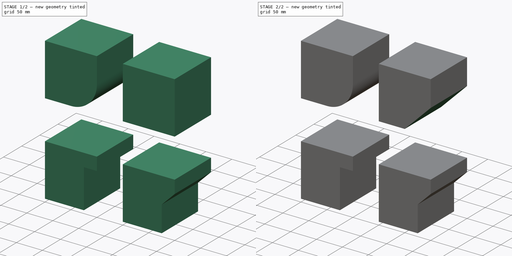
[diagram: build sequence overview — one tinted view per stage of 2, left to right]
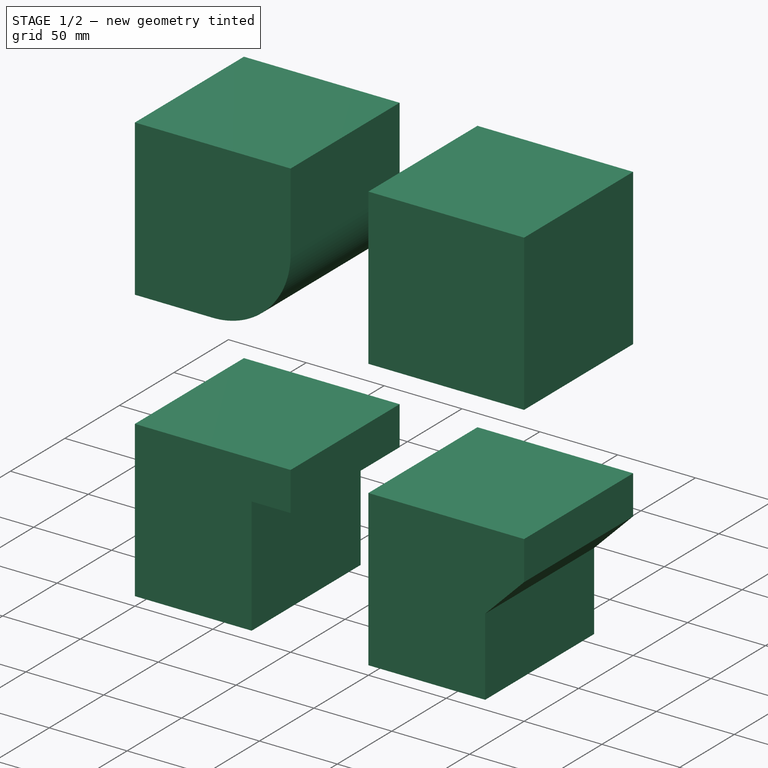
[diagram: stage 1 of 2 — iso view after this stage's code; geometry added in this stage tinted green]
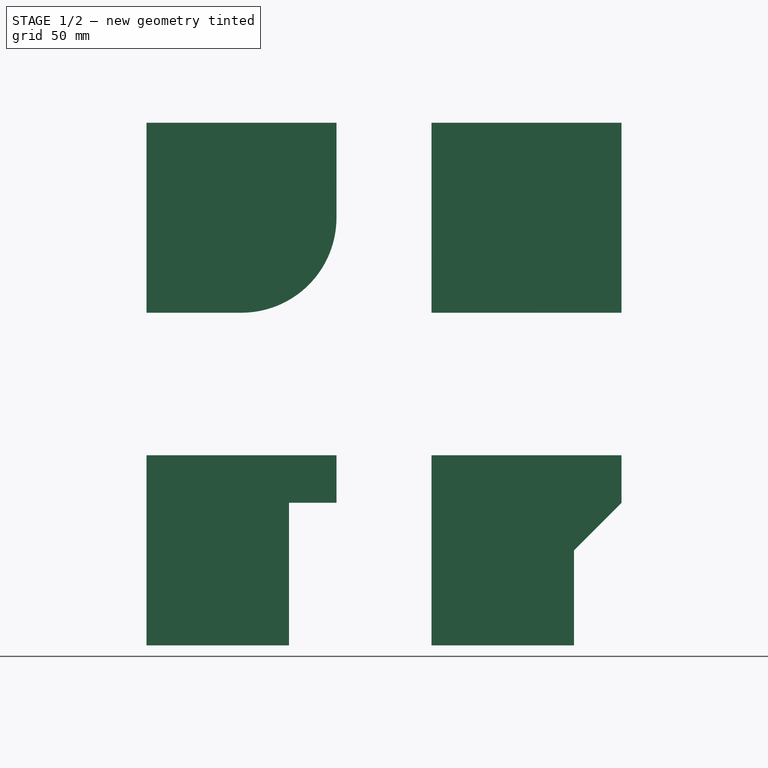
[diagram: stage 1 of 2 — front view after this stage's code; geometry added in this stage tinted green]
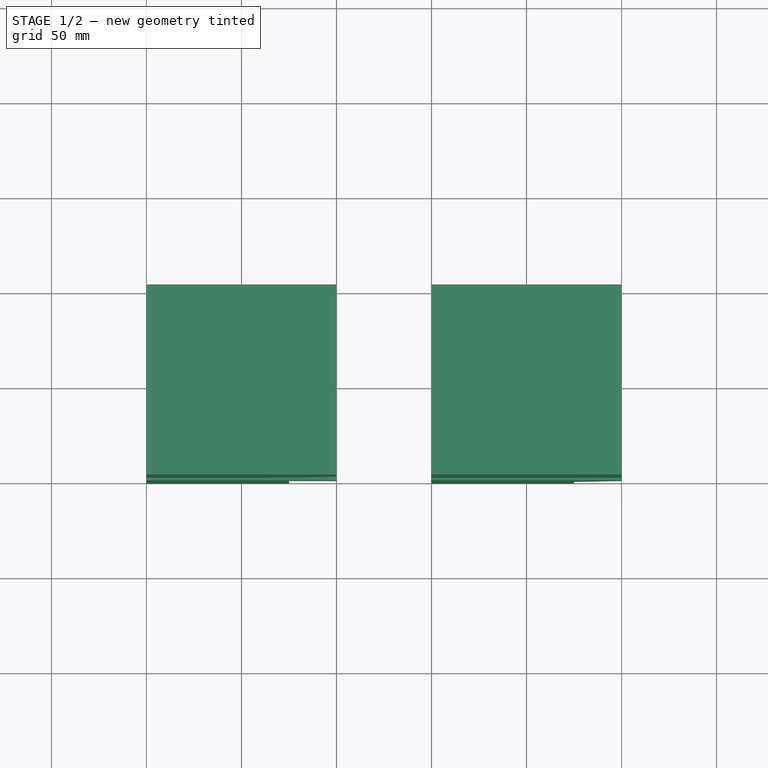
[diagram: stage 1 of 2 — top view after this stage's code; geometry added in this stage tinted green]
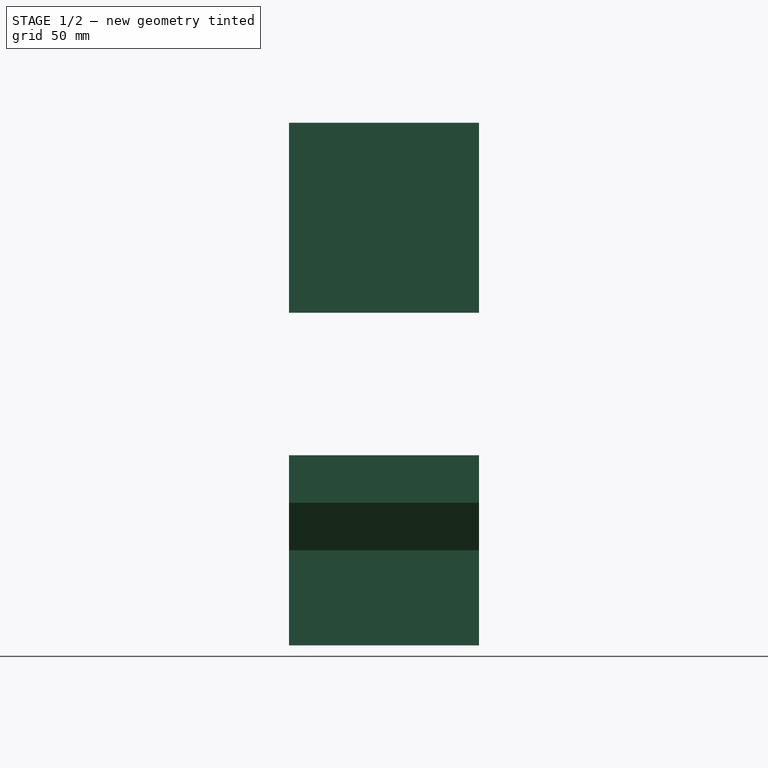
[diagram: stage 1 of 2 — right view after this stage's code; geometry added in this stage tinted green]
FCSTD DOCUMENT  (FreeCAD 0.16R6706 (Git))
Label: minimize_support
License: All rights reserved
LicenseURL: http://en.wikipedia.org/wiki/All_rights_reserved
objects: Sketcher::SketchObject×1, PartDesign::Pad×1, PartDesign::Fillet×1, PartDesign::Chamfer×1, Drawing::FeatureViewPart×1, Drawing::FeaturePage×1
note: 5 computed .brp shape members not serialized (recipe doc carries the construction recipe); baked Part::Feature solids carry a one-line shape summary decoded from their .brp

FEATURE [Sketcher::SketchObject] Sketch
  Placement = pos=(0,0,0) rot=(-1,0,0;4.71239rad)
  sketch-geometry (20):
    g0: LineSegment StartX=0 StartY=100 StartZ=0 EndX=100 EndY=100 EndZ=0
    g1: LineSegment StartX=100 StartY=100 StartZ=0 EndX=100 EndY=0 EndZ=0
    g2: LineSegment StartX=100 StartY=0 StartZ=0 EndX=0 EndY=0 EndZ=0
    g3: LineSegment StartX=0 StartY=0 StartZ=0 EndX=0 EndY=100 EndZ=0
    g4: LineSegment StartX=150 StartY=100 StartZ=0 EndX=250 EndY=100 EndZ=0
    g5: LineSegment StartX=250 StartY=100 StartZ=0 EndX=250 EndY=0 EndZ=0
    g6: LineSegment StartX=250 StartY=0 StartZ=0 EndX=150 EndY=0 EndZ=0
    g7: LineSegment StartX=150 StartY=0 StartZ=0 EndX=150 EndY=100 EndZ=0
    g8: LineSegment StartX=0 StartY=-75 StartZ=0 EndX=0 EndY=-175 EndZ=0
    g9: LineSegment StartX=0 StartY=-175 StartZ=0 EndX=75 EndY=-175 EndZ=0
    g10: LineSegment StartX=75 StartY=-175 StartZ=0 EndX=75 EndY=-100 EndZ=0
    g11: LineSegment StartX=75 StartY=-100 StartZ=0 EndX=100 EndY=-100 EndZ=0
    g12: LineSegment StartX=100 StartY=-100 StartZ=0 EndX=100 EndY=-75 EndZ=0
    g13: LineSegment StartX=100 StartY=-75 StartZ=0 EndX=0 EndY=-75 EndZ=0
    g14: LineSegment StartX=150 StartY=-75 StartZ=0 EndX=150 EndY=-175 EndZ=0
    g15: LineSegment StartX=150 StartY=-175 StartZ=0 EndX=225 EndY=-175 EndZ=0
    g16: LineSegment StartX=225 StartY=-175 StartZ=0 EndX=225 EndY=-125 EndZ=0
    g17: LineSegment StartX=225 StartY=-125 StartZ=0 EndX=250 EndY=-100 EndZ=0
    g18: LineSegment StartX=250 StartY=-100 StartZ=0 EndX=250 EndY=-75 EndZ=0
    g19: LineSegment StartX=250 StartY=-75 StartZ=0 EndX=150 EndY=-75 EndZ=0
  constraints (59):
    c: Coincident(g0,g1)
    c: Coincident(g1,g2)
    c: Coincident(g2,g3)
    c: Coincident(g3,g0)
    c: Horizontal(g0)
    c: Horizontal(g2)
    c: Vertical(g1)
    c: Vertical(g3)
    c: Coincident(g4,g5)
    c: Coincident(g5,g6)
    c: Coincident(g6,g7)
    c: Coincident(g7,g4)
    c: Horizontal(g4)
    c: Horizontal(g6)
    c: Vertical(g5)
    c: Vertical(g7)
    c: Coincident(g2,g-1)
    c: PointOnObject(g6,g-1)
    c: Equal(g0,g4)
    c: Equal(g1,g7)
    c: DistanceX(g2,g2) = 100
    c: Equal(g0,g3)
    c: DistanceX(g1,g6) = 50
    c: Vertical(g8)
    c: Coincident(g8,g9)
    c: Horizontal(g9)
    c: Coincident(g9,g10)
    c: Vertical(g10)
    c: Coincident(g10,g11)
    c: Horizontal(g11)
    c: Coincident(g11,g12)
    c: Coincident(g12,g13)
    c: Coincident(g13,g8)
    c: Horizontal(g13)
    c: Vertical(g12)
    c: DistanceX(g13,g13) = 100
    c: PointOnObject(g8,g-2)
    c: DistanceY(g8,g-1) = 75
    c: DistanceX(g9,g9) = 75
    c: DistanceY(g8,g8) = 100
    c: DistanceY(g10,g10) = 75
    c: Vertical(g14)
    c: Coincident(g14,g15)
    c: Horizontal(g15)
    c: Coincident(g15,g16)
    c: Vertical(g16)
    c: Coincident(g16,g17)
    c: Coincident(g17,g18)
    c: Vertical(g18)
    c: Coincident(g18,g19)
    c: Horizontal(g19)
    c: Coincident(g19,g14)
    c: DistanceX(g14,g6) = 0
    c: DistanceY(g14,g6) = 75
    c: Equal(g14,g8)
    c: Equal(g13,g19)
    c: Equal(g9,g15)
    c: Equal(g18,g12)
    c: DistanceY(g16,g16) = 50
FEATURE [PartDesign::Pad] Pad
  Length = 100
  Length2 = 100
  Placement = pos=(0,0,0) rot=(-1,0,0;4.71239rad)
  Sketch = -> Sketch
  Type = 0
FEATURE [PartDesign::Fillet] Fillet
  Base = -> Pad [Edge5]
  Placement = pos=(0,0,0) rot=(-1,0,0;4.71239rad)
  Radius = 50
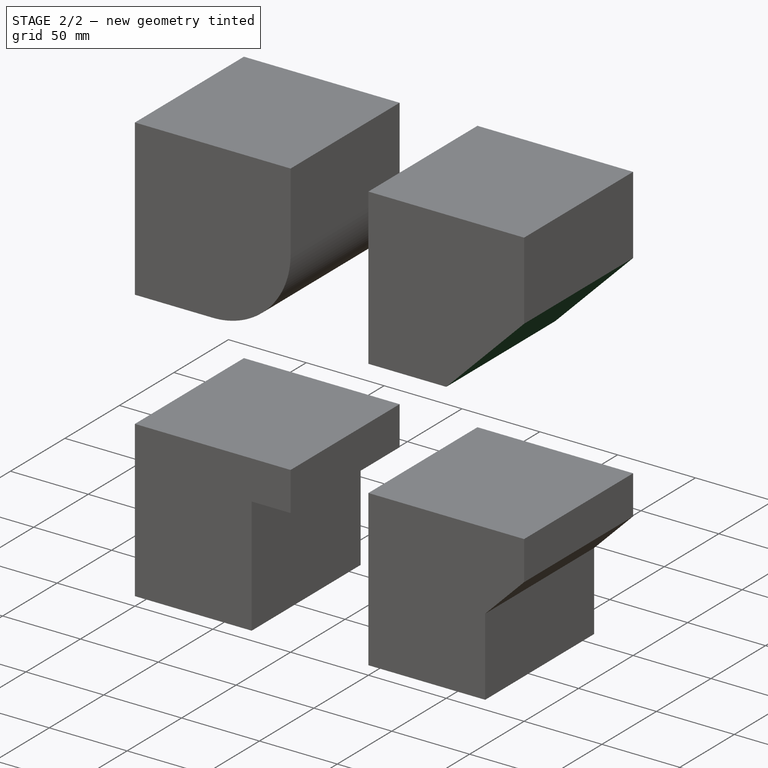
[diagram: stage 2 of 2 — iso view after this stage's code; geometry added in this stage tinted green]
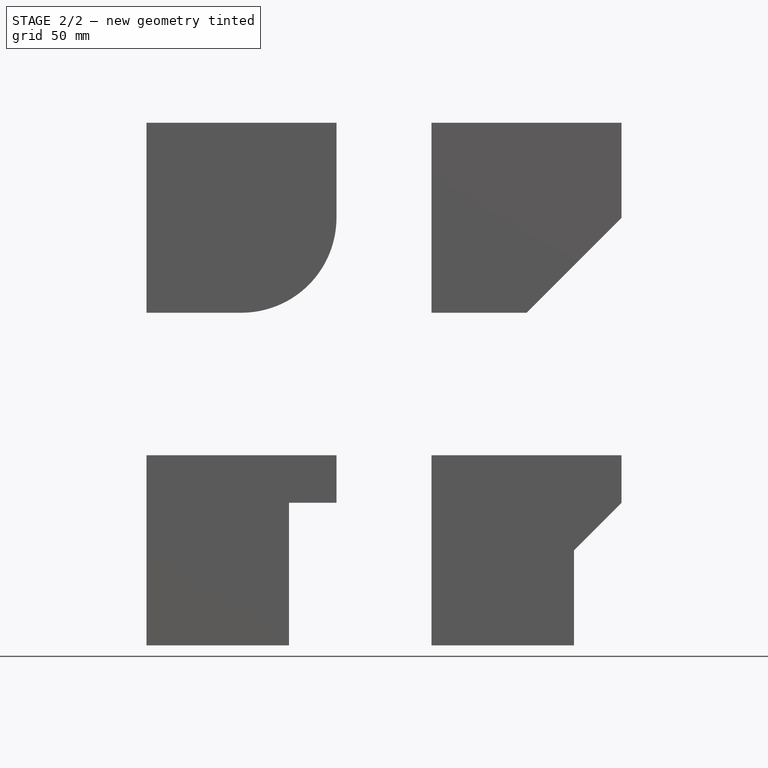
[diagram: stage 2 of 2 — front view after this stage's code; geometry added in this stage tinted green]
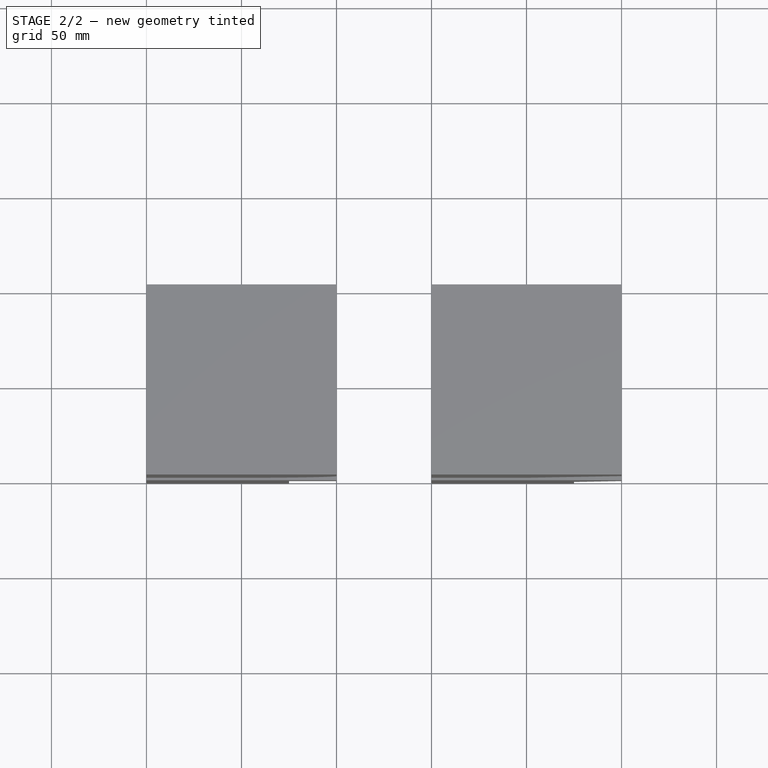
[diagram: stage 2 of 2 — top view after this stage's code; geometry added in this stage tinted green]
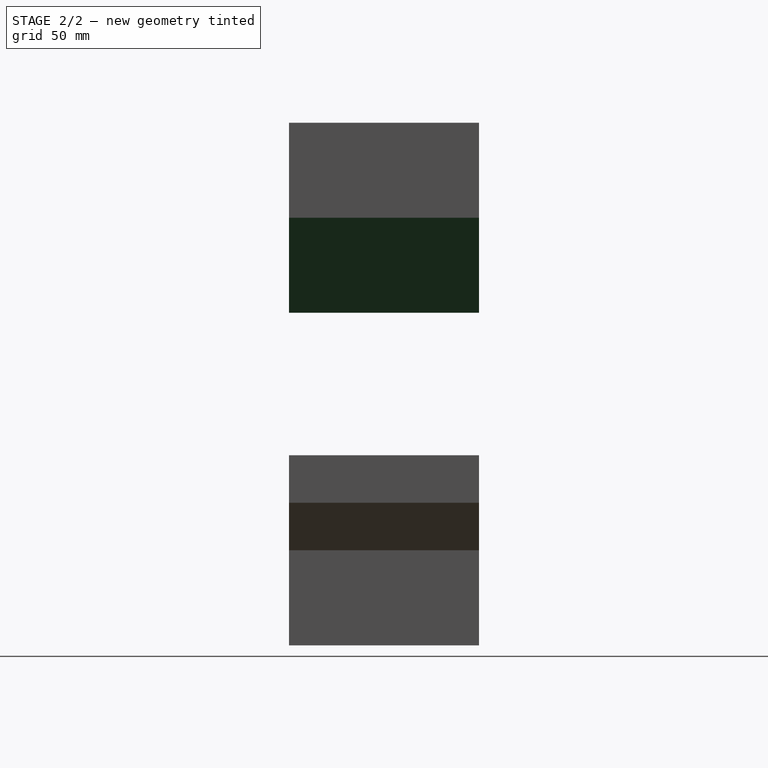
[diagram: stage 2 of 2 — right view after this stage's code; geometry added in this stage tinted green]
FEATURE [PartDesign::Chamfer] Chamfer
  Base = -> Fillet [Edge56]
  Placement = pos=(0,0,0) rot=(-1,0,0;4.71239rad)
  Size = 50
FEATURE [Drawing::FeatureViewPart] View
  Direction = (0,-1,0)
  HiddenWidth = 0.15
  LineWidth = 0.35
  Rotation = 90
  Scale = 0.33
  ShowHiddenLines = false
  ShowSmoothLines = false
  Source = -> Chamfer
  Tolerance = 0.05
  ViewResult = <g id="View"\n   transform="rotate(90,80,138.5) translate(80,138.5) scale(0.33,0.33)"\n  >\n<g   stroke="rgb(0, 0, 0)"\n   stroke-width="1.06061"\n   stroke-linecap="butt"\n   stroke-linejoin="miter"\n   fill="none"\n   transform="scale(1,-1)"\n  >\n<path id= "1" d=" M -100 250 L -50 250 " />\n<path id= "2" d=" M -50 250 L -7.10543e-15 200 " />\n<path id= "3" d=" M -100 150 L -100 250 " />\n<path id= "4" d=" M -4.44089e-14 200 L -4.44089e-14 150 " />\n<path id= "5" d=" M -4.44089e-14 150 L -100 150 " />\n<path id= "6" d=" M -100 100 L -50 100 " />\n<path d="M-50 100 A50 50 0 0 0 -2.84217e-14 50" /><path id= "8" d=" M -100 0 L -100 100 " />\n<path id= "9" d=" M -4.44089e-14 50 L -4.44089e-14 -2.84217e-14 " />\n<path id= "10" d=" M -4.44089e-14 0 L -100 0 " />\n<path id= "11" d=" M 75 150 L 175 150 " />\n<path id= "12" d=" M 175 150 L 175 225 " />\n<path id= "13" d=" M 175 225 L 125 225 " />\n<path id= "14" d=" M 125 225 L 100 250 " />\n<path id= "15" d=" M 100 250 L 75 250 " />\n<path id= "16" d=" M 75 250 L 75 150 " />\n<path id= "17" d=" M 75 0 L 175 0 " />\n<path id= "18" d=" M 175 0 L 175 75 " />\n<path id= "19" d=" M 175 75 L 100 75 " />\n<path id= "20" d=" M 100 75 L 100 100 " />\n<path id= "21" d=" M 100 100 L 75 100 " />\n<path id= "22" d=" M 75 100 L 75 -2.84217e-14 " />\n</g>\n</g>
  Visible = true
  X = 80
  Y = 138.5
FEATURE [Drawing::FeaturePage] Page
  Group = -> [View]
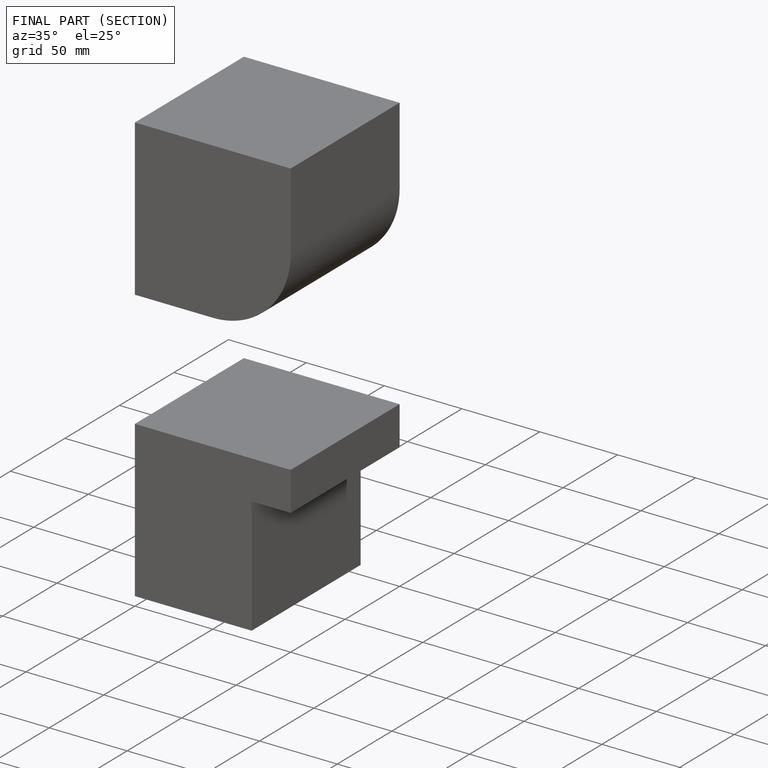
[diagram: finished part — half-section view (interior)]
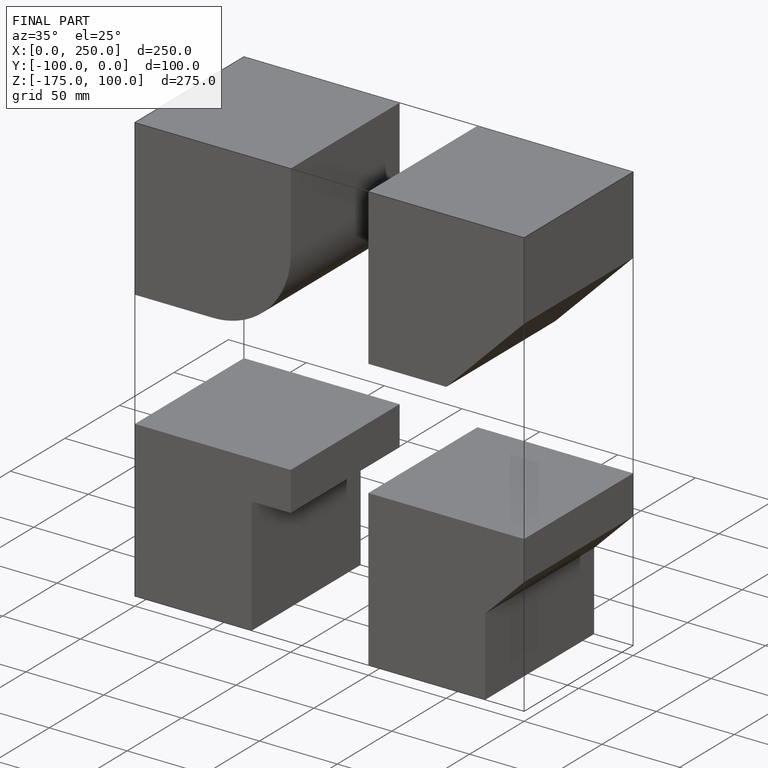
[diagram: finished part — iso view with bounding-box wireframe]
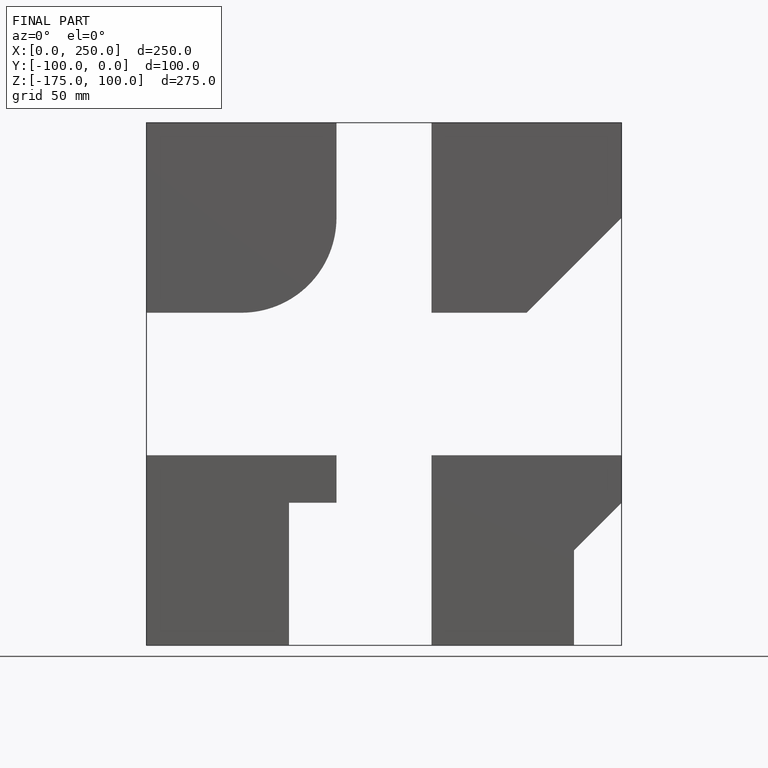
[diagram: finished part — front view with bounding-box wireframe]
